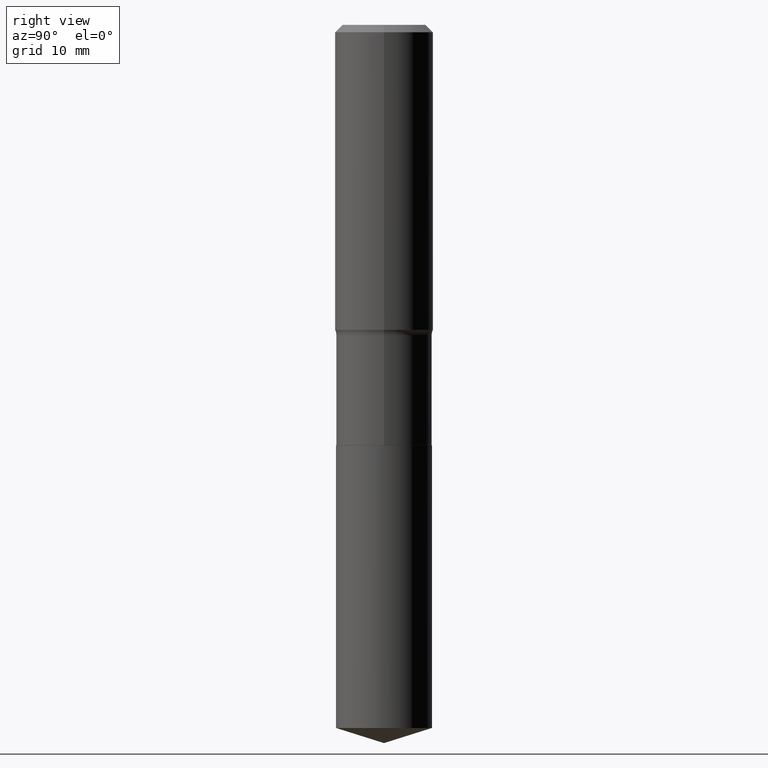
[diagram: clean part render]
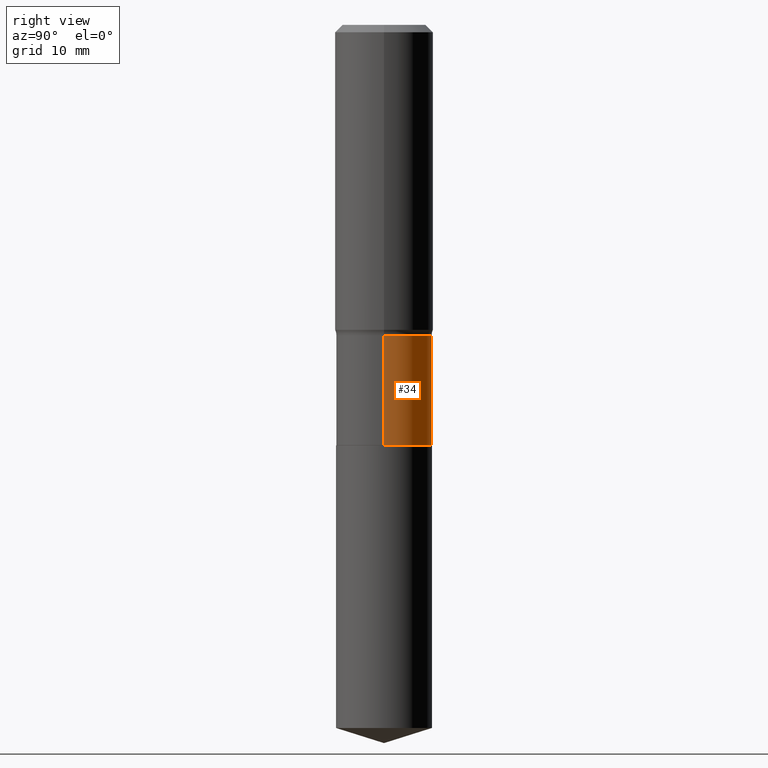
[diagram: same view with one face highlighted and labeled with its STEP entity id]
A machine part, right view. The second image highlights one B-rep face of the part: STEP entity #34.
In plain terms, the highlighted cylindrical surface (partial cylindrical patch) has radius 7.7394 mm, axis along (-0, 0, 1).
Its self-contained STEP definition (entity closure, byte-faithful):
#1 = CARTESIAN_POINT ( 'NONE',  ( 0.3046999999999999709, -2.127708727891005464E-15, 1.485771063585021539E-29 ) ) ;
#25 = DIRECTION ( 'NONE',  ( -2.445468806185136597E-29, 3.491481338843145583E-15, 1.000000000000000000 ) ) ;
#31 = CIRCLE ( 'NONE', #386, 0.3047000000000000264 ) ;
#34 = ADVANCED_FACE ( 'NONE', ( #417 ), #238, .T. ) ;
#40 = LINE ( 'NONE', #1, #271 ) ;
#93 = DIRECTION ( 'NONE',  ( 1.000000000000000000, -6.982962677686267499E-15, 4.876176775795935793E-29 ) ) ;
#103 = AXIS2_PLACEMENT_3D ( 'NONE', #434, #198, #93 ) ;
#104 = DIRECTION ( 'NONE',  ( 1.000000000000000000, -6.982962677686263555E-15, 0.000000000000000000 ) ) ;
#108 = ORIENTED_EDGE ( 'NONE', *, *, #373, .F. ) ;
#133 = CIRCLE ( 'NONE', #492, 0.3046999999999999709 ) ;
#136 = VERTEX_POINT ( 'NONE', #305 ) ;
#174 = VERTEX_POINT ( 'NONE', #317 ) ;
#178 = EDGE_LOOP ( 'NONE', ( #251, #397, #108, #282 ) ) ;
#198 = DIRECTION ( 'NONE',  ( -2.445468806185136597E-29, 3.491481338843145583E-15, 1.000000000000000000 ) ) ;
#212 = CARTESIAN_POINT ( 'NONE',  ( -0.3047000000000000819, -5.939577341928623564E-15, -2.671399999999999331 ) ) ;
#228 = LINE ( 'NONE', #346, #256 ) ;
#233 = CARTESIAN_POINT ( 'NONE',  ( 6.532825368842971777E-29, -9.327143248585576876E-15, -2.671399999999999331 ) ) ;
#238 = CYLINDRICAL_SURFACE ( 'NONE', #103, 0.3046999999999999709 ) ;
#251 = ORIENTED_EDGE ( 'NONE', *, *, #367, .T. ) ;
#256 = VECTOR ( 'NONE', #380, 39.37007874015748143 ) ;
#271 = VECTOR ( 'NONE', #459, 39.37007874015748143 ) ;
#282 = ORIENTED_EDGE ( 'NONE', *, *, #309, .F. ) ;
#285 = EDGE_CURVE ( 'NONE', #370, #136, #228, .T. ) ;
#286 = VERTEX_POINT ( 'NONE', #392 ) ;
#292 = CARTESIAN_POINT ( 'NONE',  ( 4.820263563871521824E-29, -6.882058866993723526E-15, -1.971099999999999630 ) ) ;
#305 = CARTESIAN_POINT ( 'NONE',  ( -0.3046999999999999709, -5.939577341928625142E-15, -1.971099999999999630 ) ) ;
#309 = EDGE_CURVE ( 'NONE', #286, #174, #40, .T. ) ;
#317 = CARTESIAN_POINT ( 'NONE',  ( 0.3046999999999999709, -9.009767594884727806E-15, -1.971099999999999630 ) ) ;
#346 = CARTESIAN_POINT ( 'NONE',  ( -0.3046999999999999709, 2.165023715861025059E-15, -1.498799522000669851E-29 ) ) ;
#367 = EDGE_CURVE ( 'NONE', #286, #370, #31, .T. ) ;
#370 = VERTEX_POINT ( 'NONE', #212 ) ;
#373 = EDGE_CURVE ( 'NONE', #174, #136, #133, .T. ) ;
#380 = DIRECTION ( 'NONE',  ( -2.445468806185136877E-29, 3.491481338843145188E-15, 1.000000000000000000 ) ) ;
#386 = AXIS2_PLACEMENT_3D ( 'NONE', #233, #387, #398 ) ;
#387 = DIRECTION ( 'NONE',  ( -2.445468806185136597E-29, 3.491481338843145583E-15, 1.000000000000000000 ) ) ;
#392 = CARTESIAN_POINT ( 'NONE',  ( 0.3047000000000000264, -1.145485197647658116E-14, -2.671399999999999331 ) ) ;
#397 = ORIENTED_EDGE ( 'NONE', *, *, #285, .T. ) ;
#398 = DIRECTION ( 'NONE',  ( 1.000000000000000000, -6.982962677686265133E-15, 0.000000000000000000 ) ) ;
#417 = FACE_OUTER_BOUND ( 'NONE', #178, .T. ) ;
#434 = CARTESIAN_POINT ( 'NONE',  ( 0.000000000000000000, 0.000000000000000000, 0.000000000000000000 ) ) ;
#459 = DIRECTION ( 'NONE',  ( -2.445468806185136877E-29, 3.491481338843145188E-15, 1.000000000000000000 ) ) ;
#492 = AXIS2_PLACEMENT_3D ( 'NONE', #292, #25, #104 ) ;